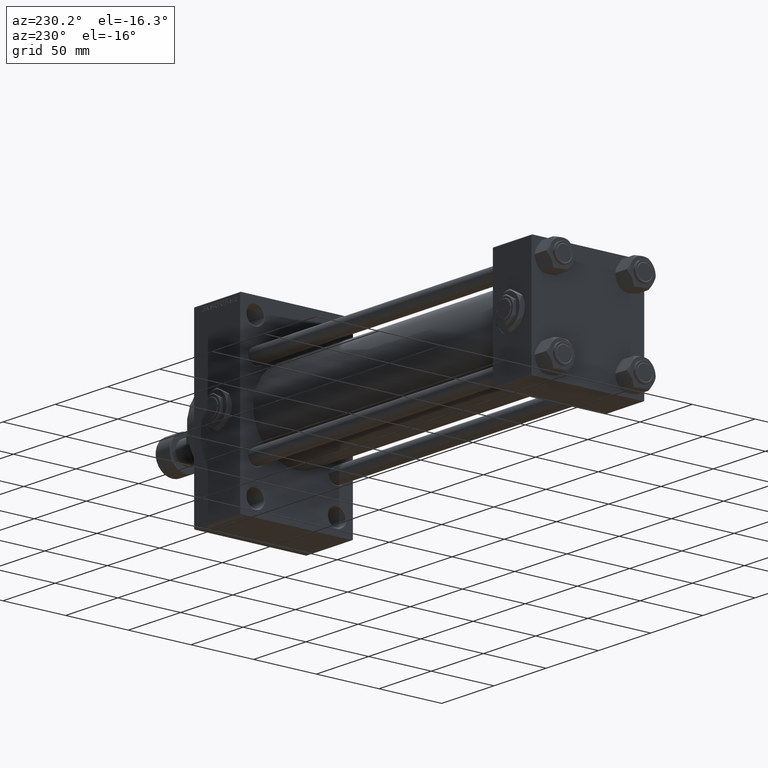
[diagram: clean part render]
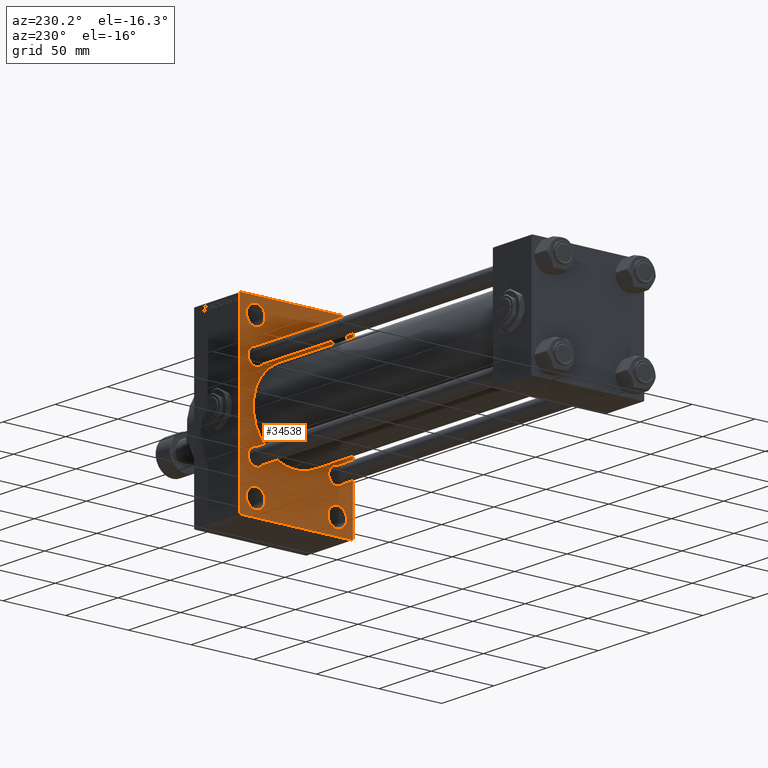
[diagram: same view with one face highlighted and labeled with its STEP entity id]
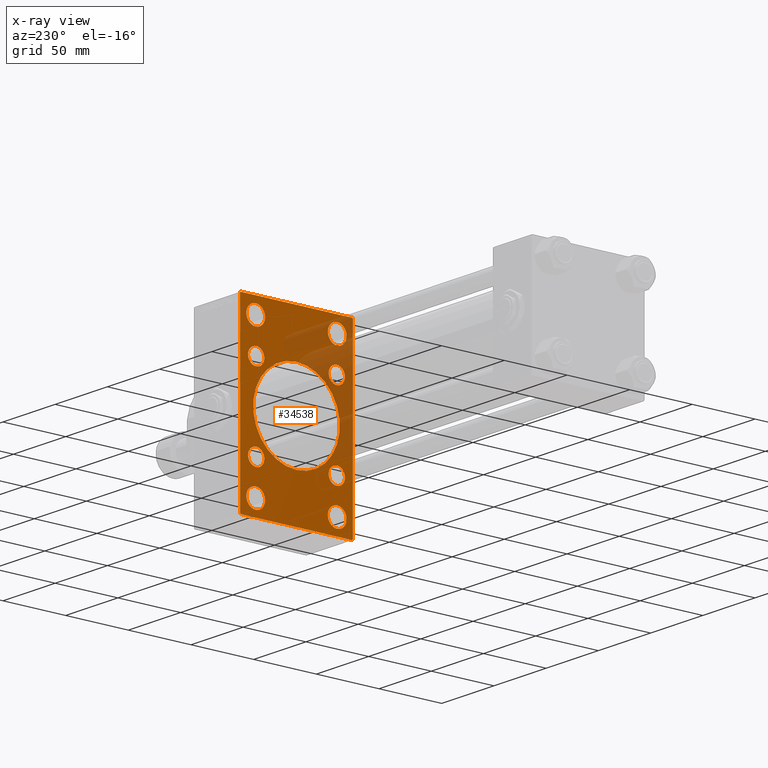
[diagram: x-ray of the same camera — body ghosted, the highlighted face saturated]
A machine part, auxiliary view. The second image highlights one B-rep face of the part: STEP entity #34538.
The next image is the same camera in x-ray: the body ghosted, the highlighted face saturated — about 24% of this face is hidden behind the body in this view.
In plain terms, the highlighted planar face has unit normal (-1, 0, 0).
Its self-contained STEP definition (entity closure, byte-faithful):
#167 = ORIENTED_EDGE ( 'NONE', *, *, #18317, .T. ) ;
#518 = DIRECTION ( 'NONE',  ( 0.000000000000000000, 0.000000000000000000, 1.000000000000000000 ) ) ;
#1076 = CARTESIAN_POINT ( 'NONE',  ( 278.9999999999999432, 45.00000000000002132, 70.50000000000000000 ) ) ;
#1190 = CIRCLE ( 'NONE', #22103, 7.500000000000062172 ) ;
#1377 = DIRECTION ( 'NONE',  ( 1.000000000000000000, -0.000000000000000000, 0.000000000000000000 ) ) ;
#1422 = CARTESIAN_POINT ( 'NONE',  ( 278.9999999999999432, 32.50000000000000711, 58.50000000000000711 ) ) ;
#2185 = CIRCLE ( 'NONE', #9468, 6.500000000000005329 ) ;
#2275 = VERTEX_POINT ( 'NONE', #41650 ) ;
#2531 = DIRECTION ( 'NONE',  ( 0.000000000000000000, 0.000000000000000000, 1.000000000000000000 ) ) ;
#2598 = VERTEX_POINT ( 'NONE', #21973 ) ;
#2968 = ORIENTED_EDGE ( 'NONE', *, *, #25973, .T. ) ;
#3000 = ORIENTED_EDGE ( 'NONE', *, *, #45796, .T. ) ;
#3211 = AXIS2_PLACEMENT_3D ( 'NONE', #35827, #1377, #16726 ) ;
#3326 = DIRECTION ( 'NONE',  ( -0.000000000000000000, 0.7071067811865425767, 0.7071067811865525687 ) ) ;
#3484 = FACE_BOUND ( 'NONE', #20088, .T. ) ;
#3878 = EDGE_CURVE ( 'NONE', #27830, #49026, #25892, .T. ) ;
#4286 = CARTESIAN_POINT ( 'NONE',  ( 278.9999999999999432, -32.14999999999997726, -32.15000000000001279 ) ) ;
#4502 = CARTESIAN_POINT ( 'NONE',  ( 278.9999999999999432, -32.14999999999997726, 32.15000000000001279 ) ) ;
#4683 = EDGE_CURVE ( 'NONE', #25458, #17980, #47112, .T. ) ;
#4776 = DIRECTION ( 'NONE',  ( 1.000000000000000000, -0.000000000000000000, 0.000000000000000000 ) ) ;
#5760 = EDGE_CURVE ( 'NONE', #20228, #6086, #34283, .T. ) ;
#6077 = DIRECTION ( 'NONE',  ( 0.000000000000000000, 0.7071067811865474617, -0.7071067811865474617 ) ) ;
#6086 = VERTEX_POINT ( 'NONE', #22366 ) ;
#6108 = VECTOR ( 'NONE', #45248, 1000.000000000000000 ) ;
#6162 = EDGE_CURVE ( 'NONE', #17980, #25458, #12618, .T. ) ;
#6605 = EDGE_CURVE ( 'NONE', #26620, #8645, #35820, .T. ) ;
#6937 = ORIENTED_EDGE ( 'NONE', *, *, #16605, .T. ) ;
#6987 = CARTESIAN_POINT ( 'NONE',  ( 278.9999999999999432, 32.14999999999999147, -38.65000000000001279 ) ) ;
#7068 = ORIENTED_EDGE ( 'NONE', *, *, #10034, .T. ) ;
#7513 = FACE_BOUND ( 'NONE', #31052, .T. ) ;
#7644 = EDGE_CURVE ( 'NONE', #2275, #33786, #7761, .T. ) ;
#7678 = AXIS2_PLACEMENT_3D ( 'NONE', #15888, #30723, #11383 ) ;
#7713 = CARTESIAN_POINT ( 'NONE',  ( 278.9999999999999432, 57.75000000000064659, -57.74999999999904077 ) ) ;
#7725 = DIRECTION ( 'NONE',  ( 1.000000000000000000, -0.000000000000000000, 0.000000000000000000 ) ) ;
#7761 = CIRCLE ( 'NONE', #27027, 6.500000000000005329 ) ;
#7774 = VERTEX_POINT ( 'NONE', #35220 ) ;
#7809 = EDGE_CURVE ( 'NONE', #33786, #2275, #10966, .T. ) ;
#7844 = CARTESIAN_POINT ( 'NONE',  ( 278.9999999999999432, 32.50000000000000711, -66.00000000000005684 ) ) ;
#7934 = CARTESIAN_POINT ( 'NONE',  ( 278.9999999999999432, -32.14999999999997726, 32.15000000000001279 ) ) ;
#8113 = EDGE_LOOP ( 'NONE', ( #17806, #3000, #16513, #33626, #44128, #6937, #40261, #167 ) ) ;
#8177 = DIRECTION ( 'NONE',  ( 0.000000000000000000, 0.000000000000000000, 1.000000000000000000 ) ) ;
#8284 = CARTESIAN_POINT ( 'NONE',  ( 278.9999999999999432, 32.14999999999999147, 25.65000000000000213 ) ) ;
#8328 = VERTEX_POINT ( 'NONE', #31280 ) ;
#8351 = VERTEX_POINT ( 'NONE', #1076 ) ;
#8462 = DIRECTION ( 'NONE',  ( 0.000000000000000000, 0.000000000000000000, 1.000000000000000000 ) ) ;
#8631 = AXIS2_PLACEMENT_3D ( 'NONE', #31134, #22615, #41955 ) ;
#8645 = VERTEX_POINT ( 'NONE', #7844 ) ;
#9224 = DIRECTION ( 'NONE',  ( 1.000000000000000000, -0.000000000000000000, 0.000000000000000000 ) ) ;
#9393 = AXIS2_PLACEMENT_3D ( 'NONE', #4286, #41791, #518 ) ;
#9468 = AXIS2_PLACEMENT_3D ( 'NONE', #45205, #44461, #40939 ) ;
#9505 = VECTOR ( 'NONE', #45070, 1000.000000000000000 ) ;
#9586 = EDGE_CURVE ( 'NONE', #2598, #49026, #37776, .T. ) ;
#9705 = DIRECTION ( 'NONE',  ( 0.000000000000000000, 0.000000000000000000, 1.000000000000000000 ) ) ;
#9857 = CARTESIAN_POINT ( 'NONE',  ( 278.9999999999999432, 32.50000000000000711, -50.99999999999993605 ) ) ;
#10034 = EDGE_CURVE ( 'NONE', #44859, #8328, #2185, .T. ) ;
#10240 = CARTESIAN_POINT ( 'NONE',  ( 278.9999999999999432, -32.14999999999997726, -38.65000000000001990 ) ) ;
#10356 = CARTESIAN_POINT ( 'NONE',  ( 278.9999999999999432, 32.14999999999999147, 32.15000000000000568 ) ) ;
#10445 = AXIS2_PLACEMENT_3D ( 'NONE', #26793, #30333, #26557 ) ;
#10507 = LINE ( 'NONE', #7713, #22106 ) ;
#10565 = PLANE ( 'NONE',  #40198 ) ;
#10674 = EDGE_CURVE ( 'NONE', #2598, #20368, #48355, .T. ) ;
#10966 = CIRCLE ( 'NONE', #9393, 6.500000000000005329 ) ;
#11210 = VERTEX_POINT ( 'NONE', #40172 ) ;
#11383 = DIRECTION ( 'NONE',  ( 0.000000000000000000, 0.000000000000000000, 1.000000000000000000 ) ) ;
#11476 = ORIENTED_EDGE ( 'NONE', *, *, #19720, .T. ) ;
#12054 = CARTESIAN_POINT ( 'NONE',  ( 278.9999999999999432, 45.00000000000001421, -70.99999999999998579 ) ) ;
#12087 = CIRCLE ( 'NONE', #24948, 7.500000000000062172 ) ;
#12279 = CARTESIAN_POINT ( 'NONE',  ( 278.9999999999999432, 44.50000000000006395, -70.99999999999998579 ) ) ;
#12286 = LINE ( 'NONE', #12054, #40482 ) ;
#12618 = CIRCLE ( 'NONE', #8631, 34.50000000000000000 ) ;
#12865 = DIRECTION ( 'NONE',  ( 1.000000000000000000, 0.000000000000000000, 0.000000000000000000 ) ) ;
#13009 = CARTESIAN_POINT ( 'NONE',  ( 278.9999999999999432, -44.99999999999997158, -70.50000000000005684 ) ) ;
#13132 = EDGE_LOOP ( 'NONE', ( #11476, #7068 ) ) ;
#13325 = EDGE_CURVE ( 'NONE', #8351, #28046, #19217, .T. ) ;
#14000 = EDGE_LOOP ( 'NONE', ( #31870, #27751 ) ) ;
#14929 = CIRCLE ( 'NONE', #7678, 6.500000000000005329 ) ;
#15106 = LINE ( 'NONE', #26415, #17274 ) ;
#15382 = EDGE_LOOP ( 'NONE', ( #16169, #22790 ) ) ;
#15553 = CARTESIAN_POINT ( 'NONE',  ( 278.9999999999999432, -2.602085213965210642E-15, 34.50000000000000000 ) ) ;
#15888 = CARTESIAN_POINT ( 'NONE',  ( 278.9999999999999432, 32.14999999999999147, -32.15000000000000568 ) ) ;
#16059 = CIRCLE ( 'NONE', #10445, 7.500000000000062172 ) ;
#16116 = DIRECTION ( 'NONE',  ( 0.000000000000000000, 0.000000000000000000, -1.000000000000000000 ) ) ;
#16169 = ORIENTED_EDGE ( 'NONE', *, *, #37666, .T. ) ;
#16204 = EDGE_CURVE ( 'NONE', #18060, #29938, #12286, .T. ) ;
#16513 = ORIENTED_EDGE ( 'NONE', *, *, #10674, .F. ) ;
#16605 = EDGE_CURVE ( 'NONE', #27830, #8351, #44073, .T. ) ;
#16726 = DIRECTION ( 'NONE',  ( 0.000000000000000000, 0.000000000000000000, 1.000000000000000000 ) ) ;
#17228 = DIRECTION ( 'NONE',  ( 0.000000000000000000, 0.000000000000000000, 1.000000000000000000 ) ) ;
#17274 = VECTOR ( 'NONE', #45779, 999.9999999999998863 ) ;
#17756 = EDGE_LOOP ( 'NONE', ( #18308, #31245 ) ) ;
#17806 = ORIENTED_EDGE ( 'NONE', *, *, #16204, .T. ) ;
#17980 = VERTEX_POINT ( 'NONE', #15553 ) ;
#18060 = VERTEX_POINT ( 'NONE', #12279 ) ;
#18308 = ORIENTED_EDGE ( 'NONE', *, *, #6162, .T. ) ;
#18317 = EDGE_CURVE ( 'NONE', #28046, #18060, #10507, .T. ) ;
#18601 = CARTESIAN_POINT ( 'NONE',  ( 278.9999999999999432, 0.000000000000000000, 0.000000000000000000 ) ) ;
#18839 = FACE_BOUND ( 'NONE', #25258, .T. ) ;
#18927 = CARTESIAN_POINT ( 'NONE',  ( 278.9999999999999432, -57.75000000000031264, 57.74999999999950973 ) ) ;
#19109 = VERTEX_POINT ( 'NONE', #42188 ) ;
#19171 = DIRECTION ( 'NONE',  ( 0.000000000000000000, 0.000000000000000000, 1.000000000000000000 ) ) ;
#19217 = LINE ( 'NONE', #23486, #23511 ) ;
#19227 = VERTEX_POINT ( 'NONE', #24362 ) ;
#19720 = EDGE_CURVE ( 'NONE', #8328, #44859, #14929, .T. ) ;
#19928 = VERTEX_POINT ( 'NONE', #41000 ) ;
#20088 = EDGE_LOOP ( 'NONE', ( #33041, #49280 ) ) ;
#20228 = VERTEX_POINT ( 'NONE', #44462 ) ;
#20368 = VERTEX_POINT ( 'NONE', #13009 ) ;
#20415 = ORIENTED_EDGE ( 'NONE', *, *, #7809, .T. ) ;
#20800 = VERTEX_POINT ( 'NONE', #36742 ) ;
#21037 = VERTEX_POINT ( 'NONE', #8284 ) ;
#21702 = AXIS2_PLACEMENT_3D ( 'NONE', #28386, #25121, #43734 ) ;
#21973 = CARTESIAN_POINT ( 'NONE',  ( 278.9999999999999432, -44.99999999999997158, 70.50000000000002842 ) ) ;
#22059 = EDGE_CURVE ( 'NONE', #20800, #11210, #1190, .T. ) ;
#22103 = AXIS2_PLACEMENT_3D ( 'NONE', #39477, #4776, #46293 ) ;
#22106 = VECTOR ( 'NONE', #26575, 1000.000000000000114 ) ;
#22111 = FACE_BOUND ( 'NONE', #40070, .T. ) ;
#22366 = CARTESIAN_POINT ( 'NONE',  ( 278.9999999999999432, -32.14999999999997726, 38.65000000000002700 ) ) ;
#22615 = DIRECTION ( 'NONE',  ( 1.000000000000000000, 0.000000000000000000, 0.000000000000000000 ) ) ;
#22741 = DIRECTION ( 'NONE',  ( 0.000000000000000000, -4.886545002751570165E-17, -1.000000000000000000 ) ) ;
#22790 = ORIENTED_EDGE ( 'NONE', *, *, #38561, .T. ) ;
#22855 = FACE_BOUND ( 'NONE', #17756, .T. ) ;
#23049 = CARTESIAN_POINT ( 'NONE',  ( 278.9999999999999432, 32.14999999999999147, 38.65000000000001279 ) ) ;
#23292 = CARTESIAN_POINT ( 'NONE',  ( 278.9999999999999432, 45.00000000000001421, -70.50000000000001421 ) ) ;
#23486 = CARTESIAN_POINT ( 'NONE',  ( 278.9999999999999432, 45.00000000000002132, 71.00000000000000000 ) ) ;
#23511 = VECTOR ( 'NONE', #22741, 1000.000000000000000 ) ;
#23869 = ORIENTED_EDGE ( 'NONE', *, *, #22059, .T. ) ;
#24061 = ORIENTED_EDGE ( 'NONE', *, *, #7644, .T. ) ;
#24362 = CARTESIAN_POINT ( 'NONE',  ( 278.9999999999999432, -32.50000000000000000, 50.99999999999995026 ) ) ;
#24468 = EDGE_CURVE ( 'NONE', #19928, #19227, #26232, .T. ) ;
#24948 = AXIS2_PLACEMENT_3D ( 'NONE', #29116, #29873, #25862 ) ;
#25022 = ORIENTED_EDGE ( 'NONE', *, *, #33068, .T. ) ;
#25121 = DIRECTION ( 'NONE',  ( 1.000000000000000000, -0.000000000000000000, 0.000000000000000000 ) ) ;
#25258 = EDGE_LOOP ( 'NONE', ( #24061, #20415 ) ) ;
#25458 = VERTEX_POINT ( 'NONE', #39566 ) ;
#25527 = CARTESIAN_POINT ( 'NONE',  ( 278.9999999999999432, -32.14999999999997726, -32.15000000000001279 ) ) ;
#25577 = CARTESIAN_POINT ( 'NONE',  ( 278.9999999999999432, 44.50000000000002132, 71.00000000000000000 ) ) ;
#25862 = DIRECTION ( 'NONE',  ( 0.000000000000000000, 0.000000000000000000, 1.000000000000000000 ) ) ;
#25892 = LINE ( 'NONE', #37450, #6108 ) ;
#25973 = EDGE_CURVE ( 'NONE', #11210, #20800, #36673, .T. ) ;
#26232 = CIRCLE ( 'NONE', #31832, 7.500000000000062172 ) ;
#26415 = CARTESIAN_POINT ( 'NONE',  ( 278.9999999999999432, -57.74999999999938893, -57.75000000000100187 ) ) ;
#26557 = DIRECTION ( 'NONE',  ( 0.000000000000000000, 0.000000000000000000, 1.000000000000000000 ) ) ;
#26575 = DIRECTION ( 'NONE',  ( -0.000000000000000000, -0.7071067811865376918, -0.7071067811865573427 ) ) ;
#26620 = VERTEX_POINT ( 'NONE', #9857 ) ;
#26793 = CARTESIAN_POINT ( 'NONE',  ( 278.9999999999999432, -32.50000000000000000, 58.50000000000000711 ) ) ;
#26889 = EDGE_LOOP ( 'NONE', ( #46786, #39230 ) ) ;
#27027 = AXIS2_PLACEMENT_3D ( 'NONE', #25527, #37073, #17228 ) ;
#27283 = DIRECTION ( 'NONE',  ( 1.000000000000000000, -0.000000000000000000, 0.000000000000000000 ) ) ;
#27751 = ORIENTED_EDGE ( 'NONE', *, *, #37779, .T. ) ;
#27830 = VERTEX_POINT ( 'NONE', #25577 ) ;
#28046 = VERTEX_POINT ( 'NONE', #23292 ) ;
#28386 = CARTESIAN_POINT ( 'NONE',  ( 278.9999999999999432, 32.14999999999999147, 32.15000000000000568 ) ) ;
#28576 = AXIS2_PLACEMENT_3D ( 'NONE', #4502, #31665, #38951 ) ;
#28618 = AXIS2_PLACEMENT_3D ( 'NONE', #44618, #36827, #9705 ) ;
#28770 = VERTEX_POINT ( 'NONE', #23049 ) ;
#28979 = AXIS2_PLACEMENT_3D ( 'NONE', #10356, #48096, #2531 ) ;
#29116 = CARTESIAN_POINT ( 'NONE',  ( 278.9999999999999432, 32.50000000000000711, -58.50000000000000000 ) ) ;
#29504 = VECTOR ( 'NONE', #3326, 999.9999999999998863 ) ;
#29873 = DIRECTION ( 'NONE',  ( 1.000000000000000000, -0.000000000000000000, 0.000000000000000000 ) ) ;
#29938 = VERTEX_POINT ( 'NONE', #41549 ) ;
#30333 = DIRECTION ( 'NONE',  ( 1.000000000000000000, -0.000000000000000000, 0.000000000000000000 ) ) ;
#30404 = DIRECTION ( 'NONE',  ( -1.000000000000000000, 0.000000000000000000, -0.000000000000000000 ) ) ;
#30723 = DIRECTION ( 'NONE',  ( 1.000000000000000000, -0.000000000000000000, 0.000000000000000000 ) ) ;
#31052 = EDGE_LOOP ( 'NONE', ( #42222, #25022 ) ) ;
#31134 = CARTESIAN_POINT ( 'NONE',  ( 278.9999999999999432, -2.602085213965210642E-15, 0.000000000000000000 ) ) ;
#31245 = ORIENTED_EDGE ( 'NONE', *, *, #4683, .T. ) ;
#31280 = CARTESIAN_POINT ( 'NONE',  ( 278.9999999999999432, 32.14999999999999147, -25.64999999999999858 ) ) ;
#31316 = CIRCLE ( 'NONE', #37740, 7.500000000000069278 ) ;
#31665 = DIRECTION ( 'NONE',  ( 1.000000000000000000, -0.000000000000000000, 0.000000000000000000 ) ) ;
#31832 = AXIS2_PLACEMENT_3D ( 'NONE', #35109, #7725, #8462 ) ;
#31870 = ORIENTED_EDGE ( 'NONE', *, *, #6605, .T. ) ;
#32917 = EDGE_CURVE ( 'NONE', #19227, #19928, #16059, .T. ) ;
#33041 = ORIENTED_EDGE ( 'NONE', *, *, #47336, .T. ) ;
#33068 = EDGE_CURVE ( 'NONE', #7774, #19109, #40162, .T. ) ;
#33427 = FACE_BOUND ( 'NONE', #14000, .T. ) ;
#33626 = ORIENTED_EDGE ( 'NONE', *, *, #9586, .T. ) ;
#33786 = VERTEX_POINT ( 'NONE', #10240 ) ;
#34029 = CARTESIAN_POINT ( 'NONE',  ( 278.9999999999999432, -44.50000000000000711, 70.99999999999998579 ) ) ;
#34283 = CIRCLE ( 'NONE', #37513, 6.500000000000005329 ) ;
#34538 = ADVANCED_FACE ( 'NONE', ( #45500, #7513, #33427, #22111, #3484, #49771, #45008, #18839, #22855, #49528 ), #10565, .T. ) ;
#34735 = DIRECTION ( 'NONE',  ( 1.000000000000000000, -0.000000000000000000, 0.000000000000000000 ) ) ;
#35109 = CARTESIAN_POINT ( 'NONE',  ( 278.9999999999999432, -32.50000000000000000, 58.50000000000000711 ) ) ;
#35220 = CARTESIAN_POINT ( 'NONE',  ( 278.9999999999999432, -32.50000000000000000, -66.00000000000005684 ) ) ;
#35820 = CIRCLE ( 'NONE', #28618, 7.500000000000062172 ) ;
#35827 = CARTESIAN_POINT ( 'NONE',  ( 278.9999999999999432, -32.50000000000000000, -58.49999999999999289 ) ) ;
#35912 = DIRECTION ( 'NONE',  ( 0.000000000000000000, -1.000000000000000000, -1.541976423090495633E-16 ) ) ;
#36116 = DIRECTION ( 'NONE',  ( 0.000000000000000000, 0.000000000000000000, 1.000000000000000000 ) ) ;
#36191 = CIRCLE ( 'NONE', #28979, 6.499999999999999112 ) ;
#36595 = EDGE_CURVE ( 'NONE', #19109, #7774, #31316, .T. ) ;
#36673 = CIRCLE ( 'NONE', #45547, 7.500000000000062172 ) ;
#36742 = CARTESIAN_POINT ( 'NONE',  ( 278.9999999999999432, 32.50000000000000711, 66.00000000000007105 ) ) ;
#36827 = DIRECTION ( 'NONE',  ( 1.000000000000000000, -0.000000000000000000, 0.000000000000000000 ) ) ;
#37073 = DIRECTION ( 'NONE',  ( 1.000000000000000000, -0.000000000000000000, 0.000000000000000000 ) ) ;
#37450 = CARTESIAN_POINT ( 'NONE',  ( 278.9999999999999432, 45.00000000000002132, 71.00000000000000000 ) ) ;
#37513 = AXIS2_PLACEMENT_3D ( 'NONE', #7934, #27283, #8177 ) ;
#37666 = EDGE_CURVE ( 'NONE', #28770, #21037, #45791, .T. ) ;
#37740 = AXIS2_PLACEMENT_3D ( 'NONE', #42041, #34735, #19171 ) ;
#37776 = LINE ( 'NONE', #18927, #29504 ) ;
#37779 = EDGE_CURVE ( 'NONE', #8645, #26620, #12087, .T. ) ;
#38561 = EDGE_CURVE ( 'NONE', #21037, #28770, #36191, .T. ) ;
#38951 = DIRECTION ( 'NONE',  ( 0.000000000000000000, 0.000000000000000000, 1.000000000000000000 ) ) ;
#39230 = ORIENTED_EDGE ( 'NONE', *, *, #32917, .T. ) ;
#39477 = CARTESIAN_POINT ( 'NONE',  ( 278.9999999999999432, 32.50000000000000711, 58.50000000000000711 ) ) ;
#39566 = CARTESIAN_POINT ( 'NONE',  ( 278.9999999999999432, 1.622946243093158675E-15, -34.50000000000000000 ) ) ;
#39880 = AXIS2_PLACEMENT_3D ( 'NONE', #43284, #12865, #16116 ) ;
#40040 = CARTESIAN_POINT ( 'NONE',  ( 278.9999999999999432, 57.75000000000000000, 57.75000000000000000 ) ) ;
#40070 = EDGE_LOOP ( 'NONE', ( #23869, #2968 ) ) ;
#40162 = CIRCLE ( 'NONE', #3211, 7.500000000000069278 ) ;
#40172 = CARTESIAN_POINT ( 'NONE',  ( 278.9999999999999432, 32.50000000000000711, 50.99999999999995026 ) ) ;
#40198 = AXIS2_PLACEMENT_3D ( 'NONE', #18601, #30404, #45244 ) ;
#40261 = ORIENTED_EDGE ( 'NONE', *, *, #13325, .T. ) ;
#40482 = VECTOR ( 'NONE', #35912, 1000.000000000000000 ) ;
#40939 = DIRECTION ( 'NONE',  ( 0.000000000000000000, 0.000000000000000000, 1.000000000000000000 ) ) ;
#41000 = CARTESIAN_POINT ( 'NONE',  ( 278.9999999999999432, -32.50000000000000000, 66.00000000000007105 ) ) ;
#41542 = CARTESIAN_POINT ( 'NONE',  ( 278.9999999999999432, -44.99999999999997158, 70.99999999999998579 ) ) ;
#41549 = CARTESIAN_POINT ( 'NONE',  ( 278.9999999999999432, -44.50000000000000000, -71.00000000000000000 ) ) ;
#41650 = CARTESIAN_POINT ( 'NONE',  ( 278.9999999999999432, -32.14999999999997726, -25.65000000000000568 ) ) ;
#41791 = DIRECTION ( 'NONE',  ( 1.000000000000000000, -0.000000000000000000, 0.000000000000000000 ) ) ;
#41955 = DIRECTION ( 'NONE',  ( 0.000000000000000000, 0.000000000000000000, -1.000000000000000000 ) ) ;
#42041 = CARTESIAN_POINT ( 'NONE',  ( 278.9999999999999432, -32.50000000000000000, -58.49999999999999289 ) ) ;
#42188 = CARTESIAN_POINT ( 'NONE',  ( 278.9999999999999432, -32.50000000000000000, -50.99999999999992184 ) ) ;
#42222 = ORIENTED_EDGE ( 'NONE', *, *, #36595, .T. ) ;
#43006 = CIRCLE ( 'NONE', #28576, 6.500000000000005329 ) ;
#43284 = CARTESIAN_POINT ( 'NONE',  ( 278.9999999999999432, -2.602085213965210642E-15, 0.000000000000000000 ) ) ;
#43734 = DIRECTION ( 'NONE',  ( 0.000000000000000000, 0.000000000000000000, 1.000000000000000000 ) ) ;
#44073 = LINE ( 'NONE', #40040, #46113 ) ;
#44128 = ORIENTED_EDGE ( 'NONE', *, *, #3878, .F. ) ;
#44461 = DIRECTION ( 'NONE',  ( 1.000000000000000000, -0.000000000000000000, 0.000000000000000000 ) ) ;
#44462 = CARTESIAN_POINT ( 'NONE',  ( 278.9999999999999432, -32.14999999999997726, 25.65000000000000213 ) ) ;
#44618 = CARTESIAN_POINT ( 'NONE',  ( 278.9999999999999432, 32.50000000000000711, -58.50000000000000000 ) ) ;
#44859 = VERTEX_POINT ( 'NONE', #6987 ) ;
#45008 = FACE_BOUND ( 'NONE', #13132, .T. ) ;
#45070 = DIRECTION ( 'NONE',  ( 0.000000000000000000, 0.000000000000000000, -1.000000000000000000 ) ) ;
#45205 = CARTESIAN_POINT ( 'NONE',  ( 278.9999999999999432, 32.14999999999999147, -32.15000000000000568 ) ) ;
#45244 = DIRECTION ( 'NONE',  ( -0.000000000000000000, 0.000000000000000000, 1.000000000000000000 ) ) ;
#45248 = DIRECTION ( 'NONE',  ( 0.000000000000000000, -1.000000000000000000, -1.541976423090495387E-16 ) ) ;
#45500 = FACE_BOUND ( 'NONE', #26889, .T. ) ;
#45547 = AXIS2_PLACEMENT_3D ( 'NONE', #1422, #9224, #36116 ) ;
#45779 = DIRECTION ( 'NONE',  ( 0.000000000000000000, -0.7071067811865574537, 0.7071067811865376918 ) ) ;
#45791 = CIRCLE ( 'NONE', #21702, 6.499999999999999112 ) ;
#45796 = EDGE_CURVE ( 'NONE', #29938, #20368, #15106, .T. ) ;
#46113 = VECTOR ( 'NONE', #6077, 1000.000000000000114 ) ;
#46293 = DIRECTION ( 'NONE',  ( 0.000000000000000000, 0.000000000000000000, 1.000000000000000000 ) ) ;
#46786 = ORIENTED_EDGE ( 'NONE', *, *, #24468, .T. ) ;
#47112 = CIRCLE ( 'NONE', #39880, 34.50000000000000000 ) ;
#47336 = EDGE_CURVE ( 'NONE', #6086, #20228, #43006, .T. ) ;
#48096 = DIRECTION ( 'NONE',  ( 1.000000000000000000, -0.000000000000000000, 0.000000000000000000 ) ) ;
#48355 = LINE ( 'NONE', #41542, #9505 ) ;
#49026 = VERTEX_POINT ( 'NONE', #34029 ) ;
#49280 = ORIENTED_EDGE ( 'NONE', *, *, #5760, .T. ) ;
#49528 = FACE_OUTER_BOUND ( 'NONE', #8113, .T. ) ;
#49771 = FACE_BOUND ( 'NONE', #15382, .T. ) ;